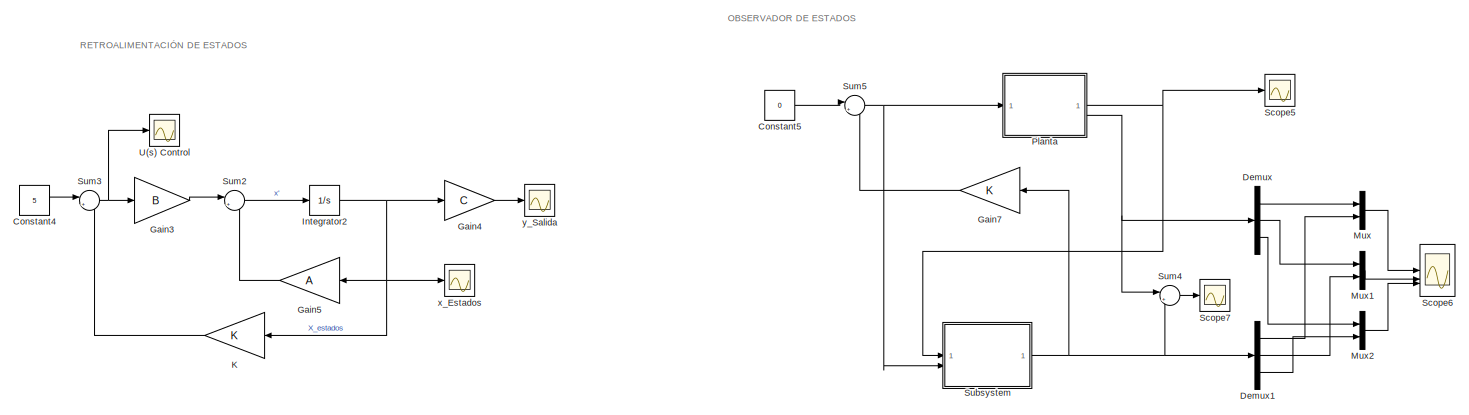
[diagram: root canvas - part 1/2, top center region]
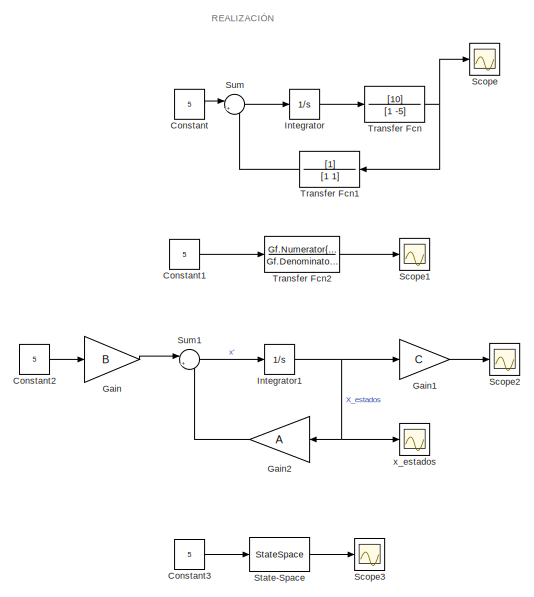
[diagram: root canvas - part 2/2, left side, full height]
MODEL slx_f16923224f4e
KIND model
CONFIG AbsTol = auto
CONFIG EnableMultiTasking = off
CONFIG FixedStep = 0.001
CONFIG MaxStep = auto
CONFIG MinStep = auto
CONFIG RelTol = 1e-3
CONFIG SampleTimeConstraint = Unconstrained
CONFIG SolverName = ode5
CONFIG StartTime = 0.0
CONFIG StopTime = 5
BLOCK [Constant] Constant
  Value = 5
BLOCK [Constant] Constant1
  Value = 5
BLOCK [Constant] Constant2
  Value = 5
BLOCK [Constant] Constant3
  Value = 5
BLOCK [Constant] Constant4
  Value = 5
BLOCK [Constant] Constant5
  Commented = on
  Value = 0
BLOCK [Demux] Demux
  Commented = on
  Outputs = 3
BLOCK [Demux] Demux1
  Commented = on
  Outputs = 3
BLOCK [Gain] Gain
  Gain = B
  Multiplication = Matrix(K*u) (u vector)
BLOCK [Gain] Gain1
  Gain = C
  Multiplication = Matrix(K*u) (u vector)
BLOCK [Gain] Gain2
  Gain = A
  Multiplication = Matrix(K*u) (u vector)
  NameLocation = top
BLOCK [Gain] Gain3
  Gain = B
  Multiplication = Matrix(K*u) (u vector)
BLOCK [Gain] Gain4
  Gain = C
  Multiplication = Matrix(K*u) (u vector)
BLOCK [Gain] Gain5
  Gain = A
  Multiplication = Matrix(K*u) (u vector)
  NameLocation = top
BLOCK [Gain] Gain7
  Commented = on
  Gain = K
  Multiplication = Matrix(K*u) (u vector)
  NameLocation = top
BLOCK [Integrator] Integrator
BLOCK [Integrator] Integrator1
  InitialCondition = [2 4 7]'
BLOCK [Integrator] Integrator2
  InitialCondition = [0 0 0]'
BLOCK [Gain] K
  Gain = K
  Multiplication = Matrix(K*u) (u vector)
  NameLocation = top
BLOCK [Mux] Mux
  Commented = on
  DisplayOption = bar
  Inputs = 2
BLOCK [Mux] Mux1
  Commented = on
  DisplayOption = bar
  Inputs = 2
BLOCK [Mux] Mux2
  Commented = on
  DisplayOption = bar
  Inputs = 2
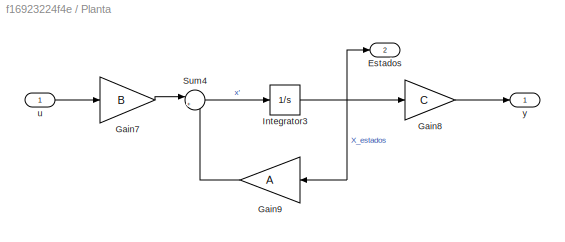
BLOCK [SubSystem] Planta
  Commented = on
BLOCK [Outport] Planta/Estados
  Port = 2
BLOCK [Gain] Planta/Gain7
  Gain = B
  Multiplication = Matrix(K*u) (u vector)
BLOCK [Gain] Planta/Gain8
  Gain = C
  Multiplication = Matrix(K*u) (u vector)
BLOCK [Gain] Planta/Gain9
  Gain = A
  Multiplication = Matrix(K*u) (u vector)
  NameLocation = top
BLOCK [Integrator] Planta/Integrator3
  InitialCondition = [-10 0 35]'
BLOCK [Sum] Planta/Sum4
  Inputs = |++
BLOCK [Inport] Planta/u
BLOCK [Outport] Planta/y
BLOCK [Scope] Scope
  Floating = off
  NumInputPorts = 1
  ScopeSpecificationString = Simulink.scopes.TimeScopeBlockCfg('CurrentConfiguration', extmgr.ConfigurationSet(extmgr.Configuration('Core','General UI',true,'FigureColor',[1 1 1]),extmgr.Configuration('Core','Source UI',true),extmgr.Configuration('Sources','WiredSimulink',true),extmgr.Configuration('Visuals','Time Domain',true,'SerializedDisplays',{struct('MinYLimReal','-395057216900581618084011311104.00000','MaxYLimReal','35...<+1714ch>
BLOCK [Scope] Scope1
  Floating = off
  NumInputPorts = 1
  ScopeSpecificationString = Simulink.scopes.TimeScopeBlockCfg('CurrentConfiguration', extmgr.ConfigurationSet(extmgr.Configuration('Core','General UI',true,'FigureColor',[1 1 1]),extmgr.Configuration('Core','Source UI',true),extmgr.Configuration('Sources','WiredSimulink',true,'DataLoggingVariableName','ScopeData1'),extmgr.Configuration('Visuals','Time Domain',true,'SerializedDisplays',{struct('MinYLimReal','-3619088487.53371...<+1593ch>
BLOCK [Scope] Scope2
  Floating = off
  NumInputPorts = 1
  ScopeSpecificationString = Simulink.scopes.TimeScopeBlockCfg('CurrentConfiguration', extmgr.ConfigurationSet(extmgr.Configuration('Core','General UI',true,'FigureColor',[1 1 1]),extmgr.Configuration('Core','Source UI',true),extmgr.Configuration('Sources','WiredSimulink',true,'DataLoggingVariableName','ScopeData2'),extmgr.Configuration('Visuals','Time Domain',true,'SerializedDisplays',{struct('MinYLimReal','-3160249954491973...<+1756ch>
BLOCK [Scope] Scope3
  Floating = off
  NumInputPorts = 1
  ScopeSpecificationString = Simulink.scopes.TimeScopeBlockCfg('CurrentConfiguration', extmgr.ConfigurationSet(extmgr.Configuration('Core','General UI',true,'FigureColor',[1 1 1]),extmgr.Configuration('Core','Source UI',true),extmgr.Configuration('Sources','WiredSimulink',true,'DataLoggingVariableName','ScopeData3'),extmgr.Configuration('Visuals','Time Domain',true,'SerializedDisplays',{struct('MinYLimReal','-1488718030663349...<+1760ch>
BLOCK [Scope] Scope5
  Commented = on
  Floating = off
  NumInputPorts = 1
  ScopeSpecificationString = Simulink.scopes.TimeScopeBlockCfg('CurrentConfiguration', extmgr.ConfigurationSet(extmgr.Configuration('Core','General UI',true,'FigureColor',[1 1 1]),extmgr.Configuration('Core','Source UI',true),extmgr.Configuration('Sources','WiredSimulink',true,'DataLoggingVariableName','ScopeData7'),extmgr.Configuration('Visuals','Time Domain',true,'SerializedDisplays',{struct('MinYLimReal','-680.36421','MaxY...<+1527ch>
BLOCK [Scope] Scope6
  Commented = on
  Floating = off
  NumInputPorts = 3
  ScopeSpecificationString = Simulink.scopes.TimeScopeBlockCfg('CurrentConfiguration', extmgr.ConfigurationSet(extmgr.Configuration('Core','General UI',true,'FigureColor',[1 1 1]),extmgr.Configuration('Core','Source UI',true),extmgr.Configuration('Sources','WiredSimulink',true,'DataLoggingVariableName','ScopeData10'),extmgr.Configuration('Visuals','Time Domain',true,'SerializedDisplays',{struct('MinYLimReal','-492.20176','Max...<+3510ch>
BLOCK [Scope] Scope7
  Commented = on
  Floating = off
  NumInputPorts = 1
  ScopeSpecificationString = Simulink.scopes.TimeScopeBlockCfg('CurrentConfiguration', extmgr.ConfigurationSet(extmgr.Configuration('Core','General UI',true,'FigureColor',[1 1 1]),extmgr.Configuration('Core','Source UI',true),extmgr.Configuration('Sources','WiredSimulink',true,'DataLoggingVariableName','ScopeData11'),extmgr.Configuration('Visuals','Time Domain',true,'SerializedDisplays',{struct('MinYLimReal','-934.73801','Max...<+1660ch>
BLOCK [StateSpace] State-Space
  A = A
  B = B
  C = C
  D = D
  InitialCondition = [3 0 0]'
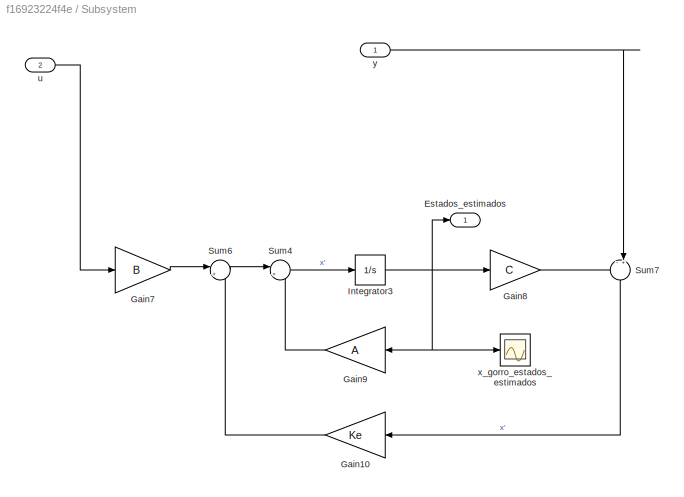
BLOCK [SubSystem] Subsystem
  Commented = on
BLOCK [Outport] Subsystem/Estados_estimados
BLOCK [Gain] Subsystem/Gain10
  Gain = Ke
  Multiplication = Matrix(K*u) (u vector)
  NameLocation = top
BLOCK [Gain] Subsystem/Gain7
  Gain = B
  Multiplication = Matrix(K*u) (u vector)
BLOCK [Gain] Subsystem/Gain8
  Gain = C
  Multiplication = Matrix(K*u) (u vector)
BLOCK [Gain] Subsystem/Gain9
  Gain = A
  Multiplication = Matrix(K*u) (u vector)
  NameLocation = top
BLOCK [Integrator] Subsystem/Integrator3
  InitialCondition = [0 0 0]'
BLOCK [Sum] Subsystem/Sum4
  Inputs = |++
BLOCK [Sum] Subsystem/Sum6
  Inputs = |++
BLOCK [Sum] Subsystem/Sum7
  Inputs = -+
  NameLocation = left
BLOCK [Inport] Subsystem/u
  Port = 2
BLOCK [Scope] Subsystem/x_gorro_estados_estimados
  Floating = off
  NumInputPorts = 1
  ScopeSpecificationString = Simulink.scopes.TimeScopeBlockCfg('CurrentConfiguration', extmgr.ConfigurationSet(extmgr.Configuration('Core','General UI',true,'FigureColor',[1 1 1]),extmgr.Configuration('Core','Source UI',true),extmgr.Configuration('Sources','WiredSimulink',true,'DataLoggingVariableName','ScopeData9'),extmgr.Configuration('Visuals','Time Domain',true,'SerializedDisplays',{struct('MinYLimReal','-1034.29038','Max...<+1595ch>
BLOCK [Inport] Subsystem/y
BLOCK [Sum] Sum
  Inputs = |+-
BLOCK [Sum] Sum1
  Inputs = |++
BLOCK [Sum] Sum2
  Inputs = |++
BLOCK [Sum] Sum3
  Inputs = |+-
BLOCK [Sum] Sum4
  Commented = on
  Inputs = |+-
BLOCK [Sum] Sum5
  Commented = on
  Inputs = |+-
BLOCK [TransferFcn] Transfer Fcn
  Denominator = [1 -5]
  Numerator = [10]
BLOCK [TransferFcn] Transfer Fcn1
  Denominator = [1 1]
  NameLocation = top
BLOCK [TransferFcn] Transfer Fcn2
  Denominator = Gf.Denominator{:}
  Numerator = Gf.Numerator{:}
BLOCK [Scope] U(s) Control
  Floating = off
  NumInputPorts = 1
  ScopeSpecificationString = Simulink.scopes.TimeScopeBlockCfg('CurrentConfiguration', extmgr.ConfigurationSet(extmgr.Configuration('Core','General UI',true,'FigureColor',[1 1 1]),extmgr.Configuration('Core','Source UI',true),extmgr.Configuration('Sources','WiredSimulink',true,'DataLoggingVariableName','ScopeData3'),extmgr.Configuration('Visuals','Time Domain',true,'TimeAxisLabels','All','SerializedDisplays',{struct('MinYLimR...<+2526ch>
BLOCK [Scope] x_Estados
  Floating = off
  NumInputPorts = 1
  ScopeSpecificationString = Simulink.scopes.TimeScopeBlockCfg('CurrentConfiguration', extmgr.ConfigurationSet(extmgr.Configuration('Core','General UI',true,'FigureColor',[1 1 1]),extmgr.Configuration('Core','Source UI',true),extmgr.Configuration('Sources','WiredSimulink',true,'DataLoggingVariableName','ScopeData1'),extmgr.Configuration('Visuals','Time Domain',true,'TimeAxisLabels','All','SerializedDisplays',{struct('MinYLimR...<+2549ch>
BLOCK [Scope] x_estados
  Floating = off
  NumInputPorts = 1
  ScopeSpecificationString = Simulink.scopes.TimeScopeBlockCfg('CurrentConfiguration', extmgr.ConfigurationSet(extmgr.Configuration('Core','General UI',true,'FigureColor',[1 1 1]),extmgr.Configuration('Core','Source UI',true),extmgr.Configuration('Sources','WiredSimulink',true,'DataLoggingVariableName','ScopeData4'),extmgr.Configuration('Visuals','Time Domain',true,'SerializedDisplays',{struct('MinYLimReal','-1198386517700347...<+1790ch>
BLOCK [Scope] y_Salida
  Floating = off
  NumInputPorts = 1
  ScopeSpecificationString = Simulink.scopes.TimeScopeBlockCfg('CurrentConfiguration', extmgr.ConfigurationSet(extmgr.Configuration('Core','General UI',true,'FigureColor',[1 1 1]),extmgr.Configuration('Core','Source UI',true),extmgr.Configuration('Sources','WiredSimulink',true,'DataLoggingVariableName','ScopeData2'),extmgr.Configuration('Visuals','Time Domain',true,'TimeAxisLabels','All','SerializedDisplays',{struct('MinYLimR...<+2520ch>
ANNOTATION (root): OBSERVADOR DE ESTADOS
ANNOTATION (root): REALIZACIÓN
ANNOTATION (root): RETROALIMENTACIÓN DE ESTADOS
LINE Constant1:1 -> Transfer Fcn2:1
LINE Constant2:1 -> Gain:1
LINE Constant3:1 -> State-Space:1
LINE Constant4:1 -> Sum3:1
LINE Constant5:1 -> Sum5:1
LINE Constant:1 -> Sum:1
LINE Demux1:1 -> Mux:2
LINE Demux1:2 -> Mux1:2
LINE Demux1:3 -> Mux2:2
LINE Demux:1 -> Mux:1
LINE Demux:2 -> Mux1:1
LINE Demux:3 -> Mux2:1
LINE Gain1:1 -> Scope2:1
LINE Gain2:1 -> Sum1:2
LINE Gain3:1 -> Sum2:1
LINE Gain4:1 -> y_Salida:1
LINE Gain5:1 -> Sum2:2
LINE Gain7:1 -> Sum5:2
LINE Gain:1 -> Sum1:1
NET Integrator1:1 -> Gain1:1, Gain2:1, x_estados:1
NET Integrator2:1 -> Gain4:1, Gain5:1, K:1, x_Estados:1
LINE Integrator:1 -> Transfer Fcn:1
LINE K:1 -> Sum3:2
LINE Mux1:1 -> Scope6:2
LINE Mux2:1 -> Scope6:3
LINE Mux:1 -> Scope6:1
LINE Planta/Gain7:1 -> Planta/Sum4:1
LINE Planta/Gain8:1 -> Planta/y:1
LINE Planta/Gain9:1 -> Planta/Sum4:2
NET Planta/Integrator3:1 -> Planta/Estados:1, Planta/Gain8:1, Planta/Gain9:1
LINE Planta/Sum4:1 -> Planta/Integrator3:1
LINE Planta/u:1 -> Planta/Gain7:1
NET Planta:1 -> Scope5:1, Subsystem:1
NET Planta:2 -> Demux:1, Sum4:1
LINE State-Space:1 -> Scope3:1
LINE Subsystem/Gain10:1 -> Subsystem/Sum6:2
LINE Subsystem/Gain7:1 -> Subsystem/Sum6:1
LINE Subsystem/Gain8:1 -> Subsystem/Sum7:1
LINE Subsystem/Gain9:1 -> Subsystem/Sum4:2
NET Subsystem/Integrator3:1 -> Subsystem/Estados_estimados:1, Subsystem/Gain8:1, Subsystem/Gain9:1, Subsystem/x_gorro_estados_estimados:1
LINE Subsystem/Sum4:1 -> Subsystem/Integrator3:1
LINE Subsystem/Sum6:1 -> Subsystem/Sum4:1
LINE Subsystem/Sum7:1 -> Subsystem/Gain10:1
LINE Subsystem/u:1 -> Subsystem/Gain7:1
LINE Subsystem/y:1 -> Subsystem/Sum7:2
NET Subsystem:1 -> Demux1:1, Gain7:1, Sum4:2
LINE Sum1:1 -> Integrator1:1
LINE Sum2:1 -> Integrator2:1
NET Sum3:1 -> Gain3:1, U(s) Control:1
LINE Sum4:1 -> Scope7:1
NET Sum5:1 -> Planta:1, Subsystem:2
LINE Sum:1 -> Integrator:1
LINE Transfer Fcn1:1 -> Sum:2
LINE Transfer Fcn2:1 -> Scope1:1
NET Transfer Fcn:1 -> Scope:1, Transfer Fcn1:1
note: NET lines group one-source signal fan-out (src -> all destinations, sorted); 1:1 wires keep LINE
